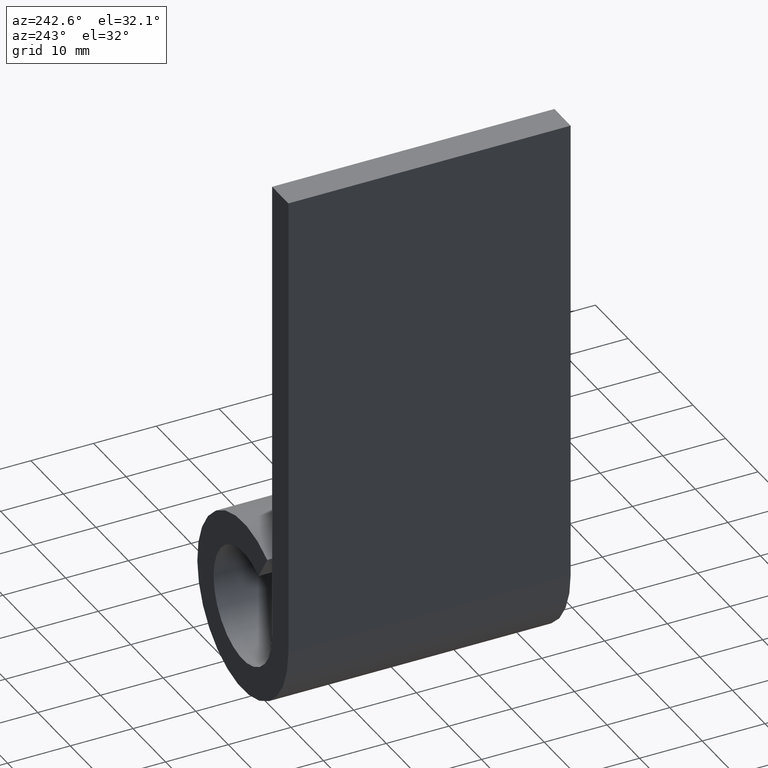
[diagram: clean part render]
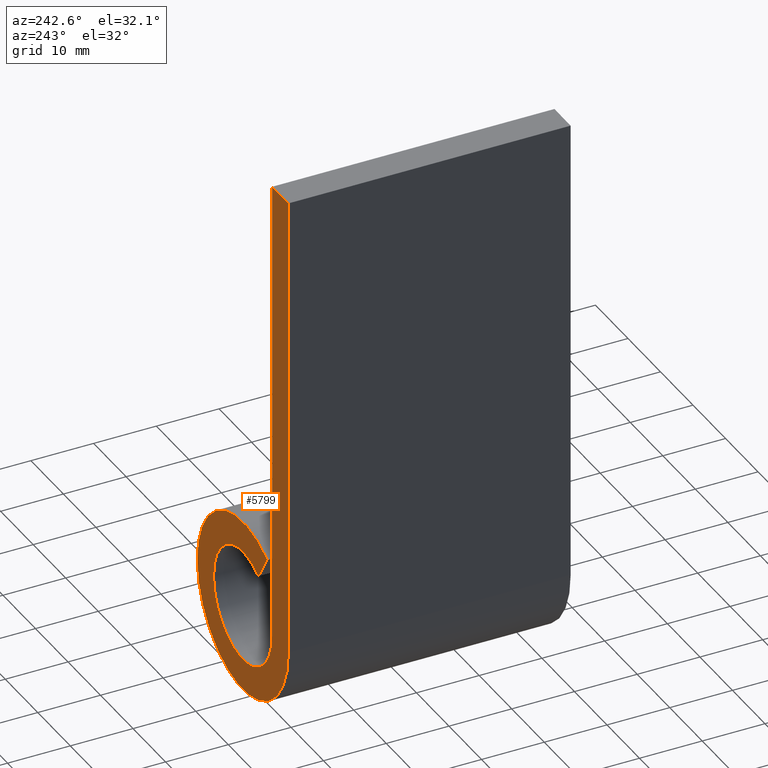
[diagram: same view with one face highlighted and labeled with its STEP entity id]
A machine part, auxiliary view. The second image highlights one B-rep face of the part: STEP entity #5799.
In plain terms, the highlighted planar face has unit normal (0, -1, 0).
Its self-contained STEP definition (entity closure, byte-faithful):
#423 = VECTOR ( 'NONE', #7749, 1000.000000000000000 ) ;
#755 = AXIS2_PLACEMENT_3D ( 'NONE', #1871, #8116, #2788 ) ;
#1321 = DIRECTION ( 'NONE',  ( 0.000000000000000000, -0.000000000000000000, -1.000000000000000000 ) ) ;
#1415 = VERTEX_POINT ( 'NONE', #9818 ) ;
#1459 = CARTESIAN_POINT ( 'NONE',  ( -9.000000000000000000, 22.50000000000000000, 75.00000000000000000 ) ) ;
#1778 = EDGE_CURVE ( 'NONE', #1415, #3002, #3384, .T. ) ;
#1801 = VECTOR ( 'NONE', #2976, 1000.000000000000000 ) ;
#1827 = AXIS2_PLACEMENT_3D ( 'NONE', #5263, #9525, #6972 ) ;
#1871 = CARTESIAN_POINT ( 'NONE',  ( 8.673617379884035472E-15, 22.50000000000000000, 0.000000000000000000 ) ) ;
#1897 = VERTEX_POINT ( 'NONE', #7915 ) ;
#1901 = ORIENTED_EDGE ( 'NONE', *, *, #10697, .T. ) ;
#2198 = FACE_OUTER_BOUND ( 'NONE', #9141, .T. ) ;
#2505 = CIRCLE ( 'NONE', #1827, 14.00000000000000533 ) ;
#2667 = CARTESIAN_POINT ( 'NONE',  ( -4.821428571428570287, 22.50000000000000000, 7.599593839845144139 ) ) ;
#2736 = DIRECTION ( 'NONE',  ( -0.5357142857142856984, -0.000000000000000000, 0.8443993155383492377 ) ) ;
#2788 = DIRECTION ( 'NONE',  ( 0.000000000000000000, 0.000000000000000000, -1.000000000000000000 ) ) ;
#2906 = VERTEX_POINT ( 'NONE', #2667 ) ;
#2976 = DIRECTION ( 'NONE',  ( -0.000000000000000000, -0.000000000000000000, 1.000000000000000000 ) ) ;
#3002 = VERTEX_POINT ( 'NONE', #8387 ) ;
#3172 = LINE ( 'NONE', #3835, #1801 ) ;
#3185 = ORIENTED_EDGE ( 'NONE', *, *, #6075, .T. ) ;
#3384 = LINE ( 'NONE', #9700, #9192 ) ;
#3835 = CARTESIAN_POINT ( 'NONE',  ( -13.99999999999999822, 22.50000000000000000, 75.00000000000000000 ) ) ;
#4023 = DIRECTION ( 'NONE',  ( 0.000000000000000000, -1.000000000000000000, 0.000000000000000000 ) ) ;
#4490 = ORIENTED_EDGE ( 'NONE', *, *, #4904, .T. ) ;
#4872 = EDGE_CURVE ( 'NONE', #3002, #9133, #8902, .T. ) ;
#4904 = EDGE_CURVE ( 'NONE', #6011, #1897, #2505, .T. ) ;
#4965 = PLANE ( 'NONE',  #8959 ) ;
#5114 = ORIENTED_EDGE ( 'NONE', *, *, #4872, .T. ) ;
#5263 = CARTESIAN_POINT ( 'NONE',  ( 8.673617379884035472E-15, 22.50000000000000000, 0.000000000000000000 ) ) ;
#5799 = ADVANCED_FACE ( 'NONE', ( #2198 ), #4965, .F. ) ;
#6011 = VERTEX_POINT ( 'NONE', #10629 ) ;
#6075 = EDGE_CURVE ( 'NONE', #1897, #1415, #3172, .T. ) ;
#6143 = LINE ( 'NONE', #7990, #8493 ) ;
#6260 = ORIENTED_EDGE ( 'NONE', *, *, #1778, .T. ) ;
#6972 = DIRECTION ( 'NONE',  ( 0.000000000000000000, 0.000000000000000000, -1.000000000000000000 ) ) ;
#7063 = DIRECTION ( 'NONE',  ( 1.000000000000000000, 0.000000000000000000, 0.000000000000000000 ) ) ;
#7439 = CARTESIAN_POINT ( 'NONE',  ( -8.999999999999998224, 22.50000000000000000, 0.000000000000000000 ) ) ;
#7749 = DIRECTION ( 'NONE',  ( 2.312964634635742895E-17, 0.000000000000000000, -1.000000000000000000 ) ) ;
#7915 = CARTESIAN_POINT ( 'NONE',  ( -13.99999999999999645, 22.50000000000000000, 2.571758278209442450E-15 ) ) ;
#7990 = CARTESIAN_POINT ( 'NONE',  ( -7.500000000000000000, 22.50000000000000000, 11.82159041753688911 ) ) ;
#8116 = DIRECTION ( 'NONE',  ( -0.000000000000000000, -1.000000000000000000, 0.000000000000000000 ) ) ;
#8387 = CARTESIAN_POINT ( 'NONE',  ( -9.000000000000000000, 22.50000000000000000, 75.00000000000000000 ) ) ;
#8493 = VECTOR ( 'NONE', #2736, 1000.000000000000114 ) ;
#8902 = LINE ( 'NONE', #1459, #423 ) ;
#8959 = AXIS2_PLACEMENT_3D ( 'NONE', #9348, #4023, #1321 ) ;
#9072 = EDGE_CURVE ( 'NONE', #9133, #2906, #11156, .T. ) ;
#9133 = VERTEX_POINT ( 'NONE', #7439 ) ;
#9141 = EDGE_LOOP ( 'NONE', ( #6260, #5114, #9933, #1901, #4490, #3185 ) ) ;
#9192 = VECTOR ( 'NONE', #7063, 1000.000000000000000 ) ;
#9348 = CARTESIAN_POINT ( 'NONE',  ( 8.673617379884035472E-15, 22.50000000000000000, 0.000000000000000000 ) ) ;
#9525 = DIRECTION ( 'NONE',  ( 0.000000000000000000, 1.000000000000000000, -0.000000000000000000 ) ) ;
#9700 = CARTESIAN_POINT ( 'NONE',  ( -13.99999999999999822, 22.50000000000000000, 75.00000000000000000 ) ) ;
#9818 = CARTESIAN_POINT ( 'NONE',  ( -13.99999999999999822, 22.50000000000000000, 75.00000000000000000 ) ) ;
#9933 = ORIENTED_EDGE ( 'NONE', *, *, #9072, .T. ) ;
#10629 = CARTESIAN_POINT ( 'NONE',  ( -7.500000000000000000, 22.50000000000000000, 11.82159041753688911 ) ) ;
#10697 = EDGE_CURVE ( 'NONE', #2906, #6011, #6143, .T. ) ;
#11156 = CIRCLE ( 'NONE', #755, 9.000000000000005329 ) ;